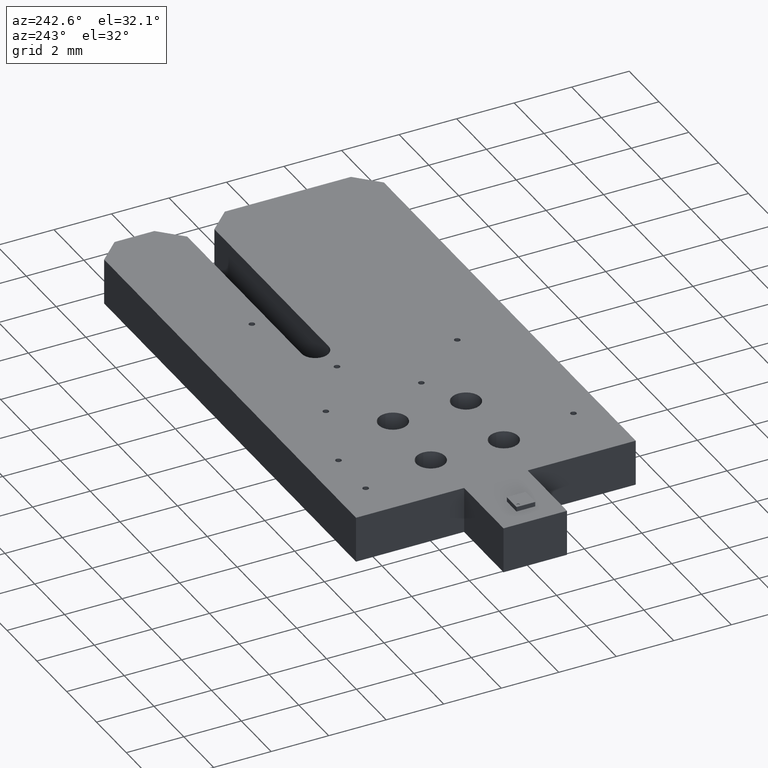
[diagram: clean part render]
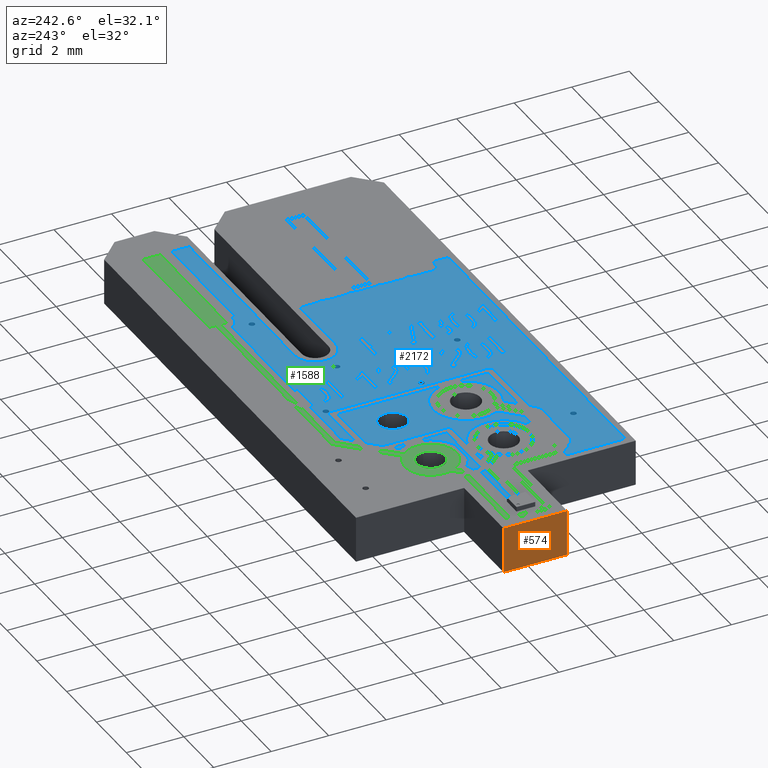
[diagram: same view with three faces highlighted in distinct colors, each labeled with its STEP entity id]
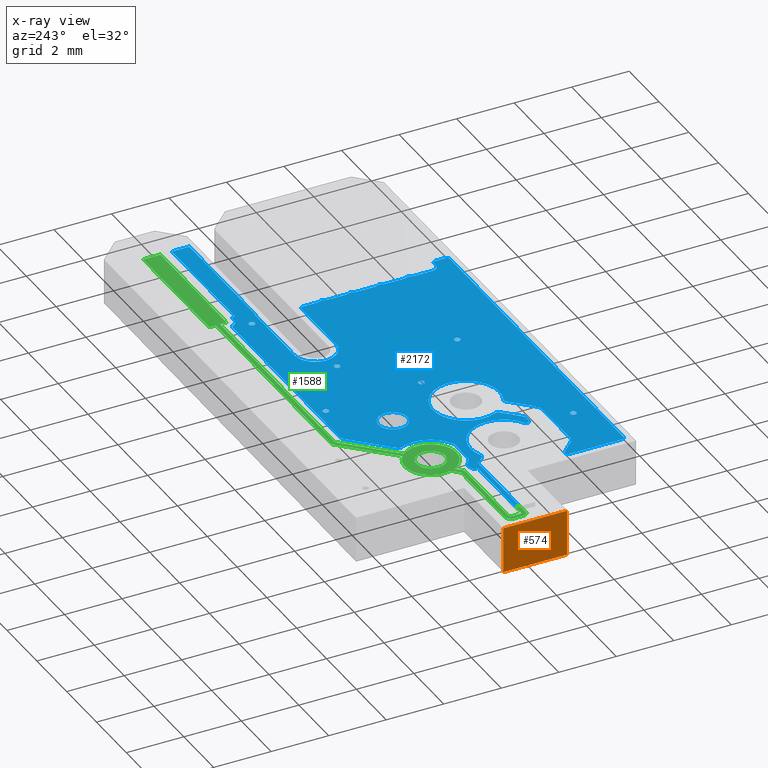
[diagram: x-ray of the same camera — body ghosted, the three highlighted faces saturated]
A machine part, auxiliary view with three faces highlighted in distinct colors.
The next image is the same camera in x-ray (body ghosted, the three faces saturated) — at least one of them is partly hidden behind the body in this view.
Their STEP definitions:

[orange] entity #574 — the highlighted planar face has unit normal (-1, 0, 0).
#549 = VERTEX_POINT('',#550);
#550 = CARTESIAN_POINT('',(1.435102870206,-1.104902209804,1.600025400051
    ));
#556 = EDGE_CURVE('',#557,#549,#559,.T.);
#557 = VERTEX_POINT('',#558);
#558 = CARTESIAN_POINT('',(1.435102870206,-1.104902209804,0.));
#559 = LINE('',#560,#561);
#560 = CARTESIAN_POINT('',(1.435102870206,-1.104902209804,0.));
#561 = VECTOR('',#562,1.);
#562 = DIRECTION('',(0.,0.,1.));
#574 = ADVANCED_FACE('',(#575),#600,.T.);
#575 = FACE_BOUND('',#576,.T.);
#576 = EDGE_LOOP('',(#577,#578,#586,#594));
#577 = ORIENTED_EDGE('',*,*,#556,.T.);
#578 = ORIENTED_EDGE('',*,*,#579,.T.);
#579 = EDGE_CURVE('',#549,#580,#582,.T.);
#580 = VERTEX_POINT('',#581);
#581 = CARTESIAN_POINT('',(1.435102870206,1.104902209804,1.600025400051)
  );
#582 = LINE('',#583,#584);
#583 = CARTESIAN_POINT('',(1.435102870206,-1.104902209804,1.600025400051
    ));
#584 = VECTOR('',#585,1.);
#585 = DIRECTION('',(0.,1.,0.));
#586 = ORIENTED_EDGE('',*,*,#587,.F.);
#587 = EDGE_CURVE('',#588,#580,#590,.T.);
#588 = VERTEX_POINT('',#589);
#589 = CARTESIAN_POINT('',(1.435102870206,1.104902209804,0.));
#590 = LINE('',#591,#592);
#591 = CARTESIAN_POINT('',(1.435102870206,1.104902209804,0.));
#592 = VECTOR('',#593,1.);
#593 = DIRECTION('',(0.,0.,1.));
#594 = ORIENTED_EDGE('',*,*,#595,.F.);
#595 = EDGE_CURVE('',#557,#588,#596,.T.);
#596 = LINE('',#597,#598);
#597 = CARTESIAN_POINT('',(1.435102870206,-1.104902209804,0.));
#598 = VECTOR('',#599,1.);
#599 = DIRECTION('',(0.,1.,0.));
#600 = PLANE('',#601);
#601 = AXIS2_PLACEMENT_3D('',#602,#603,#604);
#602 = CARTESIAN_POINT('',(1.435102870206,-1.104902209804,0.));
#603 = DIRECTION('',(-1.,0.,0.));
#604 = DIRECTION('',(0.,1.,0.));

[blue] entity #2172 — the highlighted planar face has unit normal (-0, -0, -1).
#2172 = ADVANCED_FACE('',(#2173,#2767,#2787,#2807,#2827,#2847,#2867,
    #2887),#2907,.T.);
#2173 = FACE_BOUND('',#2174,.T.);
#2174 = EDGE_LOOP('',(#2175,#2186,#2195,#2203,#2211,#2219,#2227,#2236,
    #2245,#2254,#2263,#2271,#2280,#2289,#2297,#2306,#2314,#2323,#2332,
    #2340,#2349,#2357,#2365,#2373,#2381,#2389,#2397,#2406,#2414,#2423,
    #2431,#2440,#2449,#2458,#2466,#2475,#2484,#2493,#2501,#2510,#2519,
    #2528,#2536,#2545,#2554,#2563,#2571,#2580,#2588,#2597,#2605,#2614,
    #2622,#2631,#2639,#2648,#2656,#2665,#2673,#2682,#2690,#2699,#2708,
    #2717,#2726,#2734,#2743,#2751,#2760));
#2175 = ORIENTED_EDGE('',*,*,#2176,.T.);
#2176 = EDGE_CURVE('',#2177,#2179,#2181,.T.);
#2177 = VERTEX_POINT('',#2178);
#2178 = CARTESIAN_POINT('',(7.021219520113,-0.737788060603,0.));
#2179 = VERTEX_POINT('',#2180);
#2180 = CARTESIAN_POINT('',(5.509216102142,-0.220159261251,0.));
#2181 = CIRCLE('',#2182,1.156540513081);
#2182 = AXIS2_PLACEMENT_3D('',#2183,#2184,#2185);
#2183 = CARTESIAN_POINT('',(5.994411988824,-1.270002540005,0.));
#2184 = DIRECTION('',(0.,0.,1.));
#2185 = DIRECTION('',(0.887826686291,0.460177981992,-0.));
#2186 = ORIENTED_EDGE('',*,*,#2187,.T.);
#2187 = EDGE_CURVE('',#2179,#2188,#2190,.T.);
#2188 = VERTEX_POINT('',#2189);
#2189 = CARTESIAN_POINT('',(5.394750239914,-0.199774429219,0.));
#2190 = CIRCLE('',#2191,0.1016002032);
#2191 = AXIS2_PLACEMENT_3D('',#2192,#2193,#2194);
#2192 = CARTESIAN_POINT('',(5.466592432567,-0.127932236566,0.));
#2193 = DIRECTION('',(-0.,0.,-1.));
#2194 = DIRECTION('',(0.419523467786,-0.907744490469,-0.));
#2195 = ORIENTED_EDGE('',*,*,#2196,.T.);
#2196 = EDGE_CURVE('',#2188,#2197,#2199,.T.);
#2197 = VERTEX_POINT('',#2198);
#2198 = CARTESIAN_POINT('',(5.131475683695,6.350012700025E-02,0.));
#2199 = LINE('',#2200,#2201);
#2200 = CARTESIAN_POINT('',(5.394750239914,-0.199774429219,0.));
#2201 = VECTOR('',#2202,1.);
#2202 = DIRECTION('',(-0.707106781187,0.707106781187,0.));
#2203 = ORIENTED_EDGE('',*,*,#2204,.T.);
#2204 = EDGE_CURVE('',#2197,#2205,#2207,.T.);
#2205 = VERTEX_POINT('',#2206);
#2206 = CARTESIAN_POINT('',(2.45110490221,6.350012700025E-02,0.));
#2207 = LINE('',#2208,#2209);
#2208 = CARTESIAN_POINT('',(5.131475683695,6.350012700025E-02,0.));
#2209 = VECTOR('',#2210,1.);
#2210 = DIRECTION('',(-1.,0.,0.));
#2211 = ORIENTED_EDGE('',*,*,#2212,.T.);
#2212 = EDGE_CURVE('',#2205,#2213,#2215,.T.);
#2213 = VERTEX_POINT('',#2214);
#2214 = CARTESIAN_POINT('',(2.45110490221,0.215900431801,0.));
#2215 = LINE('',#2216,#2217);
#2216 = CARTESIAN_POINT('',(2.45110490221,6.350012700025E-02,0.));
#2217 = VECTOR('',#2218,1.);
#2218 = DIRECTION('',(0.,1.,0.));
#2219 = ORIENTED_EDGE('',*,*,#2220,.T.);
#2220 = EDGE_CURVE('',#2213,#2221,#2223,.T.);
#2221 = VERTEX_POINT('',#2222);
#2222 = CARTESIAN_POINT('',(4.898025922359,0.215900431801,0.));
#2223 = LINE('',#2224,#2225);
#2224 = CARTESIAN_POINT('',(2.45110490221,0.215900431801,0.));
#2225 = VECTOR('',#2226,1.);
#2226 = DIRECTION('',(1.,0.,0.));
#2227 = ORIENTED_EDGE('',*,*,#2228,.T.);
#2228 = EDGE_CURVE('',#2221,#2229,#2231,.T.);
#2229 = VERTEX_POINT('',#2230);
#2230 = CARTESIAN_POINT('',(4.965529258874,0.3806217356,0.));
#2231 = CIRCLE('',#2232,0.1016002032);
#2232 = AXIS2_PLACEMENT_3D('',#2233,#2234,#2235);
#2233 = CARTESIAN_POINT('',(4.97711002946,0.279683699939,0.));
#2234 = DIRECTION('',(0.,0.,-1.));
#2235 = DIRECTION('',(-0.778385324142,-0.62778681665,-0.));
#2236 = ORIENTED_EDGE('',*,*,#2237,.T.);
#2237 = EDGE_CURVE('',#2229,#2238,#2240,.T.);
#2238 = VERTEX_POINT('',#2239);
#2239 = CARTESIAN_POINT('',(5.097576542779,0.425142958604,0.));
#2240 = CIRCLE('',#2241,0.332740665481);
#2241 = AXIS2_PLACEMENT_3D('',#2242,#2243,#2244);
#2242 = CARTESIAN_POINT('',(4.927602235204,0.711193802388,0.));
#2243 = DIRECTION('',(0.,0.,1.));
#2244 = DIRECTION('',(0.113983734494,-0.993482615988,0.));
#2245 = ORIENTED_EDGE('',*,*,#2246,.T.);
#2246 = EDGE_CURVE('',#2238,#2247,#2249,.T.);
#2247 = VERTEX_POINT('',#2248);
#2248 = CARTESIAN_POINT('',(5.217709173859,0.413078566934,0.));
#2249 = CIRCLE('',#2250,0.1016002032);
#2250 = AXIS2_PLACEMENT_3D('',#2251,#2252,#2253);
#2251 = CARTESIAN_POINT('',(5.149477094711,0.33779918951,0.));
#2252 = DIRECTION('',(0.,0.,-1.));
#2253 = DIRECTION('',(-0.510831182384,0.85968104731,0.));
#2254 = ORIENTED_EDGE('',*,*,#2255,.T.);
#2255 = EDGE_CURVE('',#2247,#2256,#2258,.T.);
#2256 = VERTEX_POINT('',#2257);
#2257 = CARTESIAN_POINT('',(5.518539417775,0.215900431801,0.));
#2258 = CIRCLE('',#2259,1.156540513081);
#2259 = AXIS2_PLACEMENT_3D('',#2260,#2261,#2262);
#2260 = CARTESIAN_POINT('',(5.994411988824,1.270002540005,0.));
#2261 = DIRECTION('',(0.,0.,1.));
#2262 = DIRECTION('',(-0.671574239017,-0.740937272303,0.));
#2263 = ORIENTED_EDGE('',*,*,#2264,.T.);
#2264 = EDGE_CURVE('',#2256,#2265,#2267,.T.);
#2265 = VERTEX_POINT('',#2266);
#2266 = CARTESIAN_POINT('',(6.470284559873,0.215900431801,0.));
#2267 = LINE('',#2268,#2269);
#2268 = CARTESIAN_POINT('',(5.518539417775,0.215900431801,0.));
#2269 = VECTOR('',#2270,1.);
#2270 = DIRECTION('',(1.,-8.748847056184E-17,0.));
#2271 = ORIENTED_EDGE('',*,*,#2272,.T.);
#2272 = EDGE_CURVE('',#2265,#2273,#2275,.T.);
#2273 = VERTEX_POINT('',#2274);
#2274 = CARTESIAN_POINT('',(7.044255267578,1.755198426687,0.));
#2275 = CIRCLE('',#2276,1.156540513081);
#2276 = AXIS2_PLACEMENT_3D('',#2277,#2278,#2279);
#2277 = CARTESIAN_POINT('',(5.994411988824,1.270002540005,0.));
#2278 = DIRECTION('',(0.,0.,1.));
#2279 = DIRECTION('',(0.41146208513,-0.91142687721,0.));
#2280 = ORIENTED_EDGE('',*,*,#2281,.T.);
#2281 = EDGE_CURVE('',#2273,#2282,#2284,.T.);
#2282 = VERTEX_POINT('',#2283);
#2283 = CARTESIAN_POINT('',(7.06464009961,1.869664288915,0.));
#2284 = CIRCLE('',#2285,0.1016002032);
#2285 = AXIS2_PLACEMENT_3D('',#2286,#2287,#2288);
#2286 = CARTESIAN_POINT('',(7.136482292263,1.797822096262,0.));
#2287 = DIRECTION('',(0.,0.,-1.));
#2288 = DIRECTION('',(-0.907744490469,-0.419523467786,-0.));
#2289 = ORIENTED_EDGE('',*,*,#2290,.T.);
#2290 = EDGE_CURVE('',#2282,#2291,#2293,.T.);
#2291 = VERTEX_POINT('',#2292);
#2292 = CARTESIAN_POINT('',(8.332604134921,3.137628324225,0.));
#2293 = LINE('',#2294,#2295);
#2294 = CARTESIAN_POINT('',(7.06464009961,1.869664288915,0.));
#2295 = VECTOR('',#2296,1.);
#2296 = DIRECTION('',(0.707106781187,0.707106781187,0.));
#2297 = ORIENTED_EDGE('',*,*,#2298,.T.);
#2298 = EDGE_CURVE('',#2291,#2299,#2301,.T.);
#2299 = VERTEX_POINT('',#2300);
#2300 = CARTESIAN_POINT('',(8.404446327574,3.167386334773,0.));
#2301 = CIRCLE('',#2302,0.1016002032);
#2302 = AXIS2_PLACEMENT_3D('',#2303,#2304,#2305);
#2303 = CARTESIAN_POINT('',(8.404446327574,3.065786131572,0.));
#2304 = DIRECTION('',(0.,0.,-1.));
#2305 = DIRECTION('',(-0.707106781187,0.707106781187,0.));
#2306 = ORIENTED_EDGE('',*,*,#2307,.T.);
#2307 = EDGE_CURVE('',#2299,#2308,#2310,.T.);
#2308 = VERTEX_POINT('',#2309);
#2309 = CARTESIAN_POINT('',(15.630039589024,3.167386334773,0.));
#2310 = LINE('',#2311,#2312);
#2311 = CARTESIAN_POINT('',(8.404446327574,3.167386334773,0.));
#2312 = VECTOR('',#2313,1.);
#2313 = DIRECTION('',(1.,0.,0.));
#2314 = ORIENTED_EDGE('',*,*,#2315,.T.);
#2315 = EDGE_CURVE('',#2308,#2316,#2318,.T.);
#2316 = VERTEX_POINT('',#2317);
#2317 = CARTESIAN_POINT('',(15.724760819901,3.10253514124,0.));
#2318 = CIRCLE('',#2319,0.1016002032);
#2319 = AXIS2_PLACEMENT_3D('',#2320,#2321,#2322);
#2320 = CARTESIAN_POINT('',(15.630039589024,3.065786131572,0.));
#2321 = DIRECTION('',(0.,0.,-1.));
#2322 = DIRECTION('',(-2.961863599601E-14,1.,0.));
#2323 = ORIENTED_EDGE('',*,*,#2324,.T.);
#2324 = EDGE_CURVE('',#2316,#2325,#2327,.T.);
#2325 = VERTEX_POINT('',#2326);
#2326 = CARTESIAN_POINT('',(15.963931927864,2.938785877572,0.));
#2327 = CIRCLE('',#2328,0.256540513081);
#2328 = AXIS2_PLACEMENT_3D('',#2329,#2330,#2331);
#2329 = CARTESIAN_POINT('',(15.963931927864,3.195326390653,0.));
#2330 = DIRECTION('',(0.,0.,1.));
#2331 = DIRECTION('',(-0.932293714902,-0.36170212766,0.));
#2332 = ORIENTED_EDGE('',*,*,#2333,.T.);
#2333 = EDGE_CURVE('',#2325,#2334,#2336,.T.);
#2334 = VERTEX_POINT('',#2335);
#2335 = CARTESIAN_POINT('',(16.078232156464,2.938785877572,0.));
#2336 = LINE('',#2337,#2338);
#2337 = CARTESIAN_POINT('',(15.963931927864,2.938785877572,0.));
#2338 = VECTOR('',#2339,1.);
#2339 = DIRECTION('',(1.,3.885287153733E-15,0.));
#2340 = ORIENTED_EDGE('',*,*,#2341,.T.);
#2341 = EDGE_CURVE('',#2334,#2342,#2344,.T.);
#2342 = VERTEX_POINT('',#2343);
#2343 = CARTESIAN_POINT('',(16.179832359665,2.837185674371,0.));
#2344 = CIRCLE('',#2345,0.1016002032);
#2345 = AXIS2_PLACEMENT_3D('',#2346,#2347,#2348);
#2346 = CARTESIAN_POINT('',(16.078232156464,2.837185674371,0.));
#2347 = DIRECTION('',(0.,0.,-1.));
#2348 = DIRECTION('',(6.567794885453E-15,1.,0.));
#2349 = ORIENTED_EDGE('',*,*,#2350,.T.);
#2350 = EDGE_CURVE('',#2342,#2351,#2353,.T.);
#2351 = VERTEX_POINT('',#2352);
#2352 = CARTESIAN_POINT('',(16.179832359665,2.804165608331,0.));
#2353 = LINE('',#2354,#2355);
#2354 = CARTESIAN_POINT('',(16.179832359665,2.837185674371,0.));
#2355 = VECTOR('',#2356,1.);
#2356 = DIRECTION('',(1.075925673341E-13,-1.,0.));
#2357 = ORIENTED_EDGE('',*,*,#2358,.T.);
#2358 = EDGE_CURVE('',#2351,#2359,#2361,.T.);
#2359 = VERTEX_POINT('',#2360);
#2360 = CARTESIAN_POINT('',(20.408940817882,2.804165608331,0.));
#2361 = LINE('',#2362,#2363);
#2362 = CARTESIAN_POINT('',(16.179832359665,2.804165608331,0.));
#2363 = VECTOR('',#2364,1.);
#2364 = DIRECTION('',(1.,-1.050077609117E-16,0.));
#2365 = ORIENTED_EDGE('',*,*,#2366,.T.);
#2366 = EDGE_CURVE('',#2359,#2367,#2369,.T.);
#2367 = VERTEX_POINT('',#2368);
#2368 = CARTESIAN_POINT('',(20.408940817882,2.194564389129,0.));
#2369 = LINE('',#2370,#2371);
#2370 = CARTESIAN_POINT('',(20.408940817882,2.804165608331,0.));
#2371 = VECTOR('',#2372,1.);
#2372 = DIRECTION('',(0.,-1.,0.));
#2373 = ORIENTED_EDGE('',*,*,#2374,.T.);
#2374 = EDGE_CURVE('',#2367,#2375,#2377,.T.);
#2375 = VERTEX_POINT('',#2376);
#2376 = CARTESIAN_POINT('',(15.963931927864,2.194564389129,0.));
#2377 = LINE('',#2378,#2379);
#2378 = CARTESIAN_POINT('',(20.408940817882,2.194564389129,0.));
#2379 = VECTOR('',#2380,1.);
#2380 = DIRECTION('',(-1.,9.990738395313E-17,0.));
#2381 = ORIENTED_EDGE('',*,*,#2382,.T.);
#2382 = EDGE_CURVE('',#2375,#2383,#2385,.T.);
#2383 = VERTEX_POINT('',#2384);
#2384 = CARTESIAN_POINT('',(15.963931927864,2.214884429769,0.));
#2385 = LINE('',#2386,#2387);
#2386 = CARTESIAN_POINT('',(15.963931927864,2.194564389129,0.));
#2387 = VECTOR('',#2388,1.);
#2388 = DIRECTION('',(0.,1.,0.));
#2389 = ORIENTED_EDGE('',*,*,#2390,.T.);
#2390 = EDGE_CURVE('',#2383,#2391,#2393,.T.);
#2391 = VERTEX_POINT('',#2392);
#2392 = CARTESIAN_POINT('',(13.309626619253,2.214884429769,0.));
#2393 = LINE('',#2394,#2395);
#2394 = CARTESIAN_POINT('',(15.963931927864,2.214884429769,0.));
#2395 = VECTOR('',#2396,1.);
#2396 = DIRECTION('',(-1.,0.,0.));
#2397 = ORIENTED_EDGE('',*,*,#2398,.T.);
#2398 = EDGE_CURVE('',#2391,#2399,#2401,.T.);
#2399 = VERTEX_POINT('',#2400);
#2400 = CARTESIAN_POINT('',(13.309626619253,0.787401574803,0.));
#2401 = CIRCLE('',#2402,0.713741427483);
#2402 = AXIS2_PLACEMENT_3D('',#2403,#2404,#2405);
#2403 = CARTESIAN_POINT('',(13.309626619253,1.501143002286,0.));
#2404 = DIRECTION('',(0.,0.,1.));
#2405 = DIRECTION('',(-1.110223024625E-16,1.,0.));
#2406 = ORIENTED_EDGE('',*,*,#2407,.T.);
#2407 = EDGE_CURVE('',#2399,#2408,#2410,.T.);
#2408 = VERTEX_POINT('',#2409);
#2409 = CARTESIAN_POINT('',(15.605791211582,0.787401574803,0.));
#2410 = LINE('',#2411,#2412);
#2411 = CARTESIAN_POINT('',(13.309626619253,0.787401574803,0.));
#2412 = VECTOR('',#2413,1.);
#2413 = DIRECTION('',(1.,0.,0.));
#2414 = ORIENTED_EDGE('',*,*,#2415,.T.);
#2415 = EDGE_CURVE('',#2408,#2416,#2418,.T.);
#2416 = VERTEX_POINT('',#2417);
#2417 = CARTESIAN_POINT('',(15.707391414783,0.685801371603,0.));
#2418 = CIRCLE('',#2419,0.1016002032);
#2419 = AXIS2_PLACEMENT_3D('',#2420,#2421,#2422);
#2420 = CARTESIAN_POINT('',(15.605791211582,0.685801371603,0.));
#2421 = DIRECTION('',(0.,0.,-1.));
#2422 = DIRECTION('',(-3.187312223823E-15,1.,0.));
#2423 = ORIENTED_EDGE('',*,*,#2424,.T.);
#2424 = EDGE_CURVE('',#2416,#2425,#2427,.T.);
#2425 = VERTEX_POINT('',#2426);
#2426 = CARTESIAN_POINT('',(15.707391414783,0.195580391161,0.));
#2427 = LINE('',#2428,#2429);
#2428 = CARTESIAN_POINT('',(15.707391414783,0.685801371603,0.));
#2429 = VECTOR('',#2430,1.);
#2430 = DIRECTION('',(3.623583873948E-15,-1.,0.));
#2431 = ORIENTED_EDGE('',*,*,#2432,.T.);
#2432 = EDGE_CURVE('',#2425,#2433,#2435,.T.);
#2433 = VERTEX_POINT('',#2434);
#2434 = CARTESIAN_POINT('',(15.749022691925,5.548379891086E-02,0.));
#2435 = CIRCLE('',#2436,0.256540513081);
#2436 = AXIS2_PLACEMENT_3D('',#2437,#2438,#2439);
#2437 = CARTESIAN_POINT('',(15.963931927864,0.195580391161,0.));
#2438 = DIRECTION('',(0.,0.,1.));
#2439 = DIRECTION('',(-1.,4.367925577747E-15,0.));
#2440 = ORIENTED_EDGE('',*,*,#2441,.T.);
#2441 = EDGE_CURVE('',#2433,#2442,#2444,.T.);
#2442 = VERTEX_POINT('',#2443);
#2443 = CARTESIAN_POINT('',(15.749022691925,-5.548379891086E-02,0.));
#2444 = CIRCLE('',#2445,0.1016002032);
#2445 = AXIS2_PLACEMENT_3D('',#2446,#2447,#2448);
#2446 = CARTESIAN_POINT('',(15.663910123236,-4.78273572157E-16,0.));
#2447 = DIRECTION('',(0.,0.,-1.));
#2448 = DIRECTION('',(0.837720457318,0.54609929078,0.));
#2449 = ORIENTED_EDGE('',*,*,#2450,.T.);
#2450 = EDGE_CURVE('',#2442,#2451,#2453,.T.);
#2451 = VERTEX_POINT('',#2452);
#2452 = CARTESIAN_POINT('',(15.707391414783,-0.195580391161,0.));
#2453 = CIRCLE('',#2454,0.256540513081);
#2454 = AXIS2_PLACEMENT_3D('',#2455,#2456,#2457);
#2455 = CARTESIAN_POINT('',(15.963931927864,-0.195580391161,0.));
#2456 = DIRECTION('',(0.,0.,1.));
#2457 = DIRECTION('',(-0.837720457318,0.54609929078,0.));
#2458 = ORIENTED_EDGE('',*,*,#2459,.T.);
#2459 = EDGE_CURVE('',#2451,#2460,#2462,.T.);
#2460 = VERTEX_POINT('',#2461);
#2461 = CARTESIAN_POINT('',(15.707391414783,-0.805181610363,0.));
#2462 = LINE('',#2463,#2464);
#2463 = CARTESIAN_POINT('',(15.707391414783,-0.195580391161,0.));
#2464 = VECTOR('',#2465,1.);
#2465 = DIRECTION('',(-2.913965365299E-15,-1.,0.));
#2466 = ORIENTED_EDGE('',*,*,#2467,.T.);
#2467 = EDGE_CURVE('',#2460,#2468,#2470,.T.);
#2468 = VERTEX_POINT('',#2469);
#2469 = CARTESIAN_POINT('',(15.749022691925,-0.945278202613,0.));
#2470 = CIRCLE('',#2471,0.256540513081);
#2471 = AXIS2_PLACEMENT_3D('',#2472,#2473,#2474);
#2472 = CARTESIAN_POINT('',(15.963931927864,-0.805181610363,0.));
#2473 = DIRECTION('',(0.,0.,1.));
#2474 = DIRECTION('',(-1.,9.875310001862E-15,0.));
#2475 = ORIENTED_EDGE('',*,*,#2476,.T.);
#2476 = EDGE_CURVE('',#2468,#2477,#2479,.T.);
#2477 = VERTEX_POINT('',#2478);
#2478 = CARTESIAN_POINT('',(15.749022691925,-1.056245800435,0.));
#2479 = CIRCLE('',#2480,0.1016002032);
#2480 = AXIS2_PLACEMENT_3D('',#2481,#2482,#2483);
#2481 = CARTESIAN_POINT('',(15.663910123236,-1.000762001524,0.));
#2482 = DIRECTION('',(0.,0.,-1.));
#2483 = DIRECTION('',(0.837720457318,0.54609929078,0.));
#2484 = ORIENTED_EDGE('',*,*,#2485,.T.);
#2485 = EDGE_CURVE('',#2477,#2486,#2488,.T.);
#2486 = VERTEX_POINT('',#2487);
#2487 = CARTESIAN_POINT('',(15.707391414783,-1.196342392685,0.));
#2488 = CIRCLE('',#2489,0.256540513081);
#2489 = AXIS2_PLACEMENT_3D('',#2490,#2491,#2492);
#2490 = CARTESIAN_POINT('',(15.963931927864,-1.196342392685,0.));
#2491 = DIRECTION('',(0.,0.,1.));
#2492 = DIRECTION('',(-0.837720457318,0.54609929078,0.));
#2493 = ORIENTED_EDGE('',*,*,#2494,.T.);
#2494 = EDGE_CURVE('',#2486,#2495,#2497,.T.);
#2495 = VERTEX_POINT('',#2496);
#2496 = CARTESIAN_POINT('',(15.707391414783,-1.805943611887,0.));
#2497 = LINE('',#2498,#2499);
#2498 = CARTESIAN_POINT('',(15.707391414783,-1.196342392685,0.));
#2499 = VECTOR('',#2500,1.);
#2500 = DIRECTION('',(0.,-1.,0.));
#2501 = ORIENTED_EDGE('',*,*,#2502,.T.);
#2502 = EDGE_CURVE('',#2495,#2503,#2505,.T.);
#2503 = VERTEX_POINT('',#2504);
#2504 = CARTESIAN_POINT('',(15.749022691925,-1.946040204137,0.));
#2505 = CIRCLE('',#2506,0.256540513081);
#2506 = AXIS2_PLACEMENT_3D('',#2507,#2508,#2509);
#2507 = CARTESIAN_POINT('',(15.963931927864,-1.805943611887,0.));
#2508 = DIRECTION('',(0.,0.,1.));
#2509 = DIRECTION('',(-1.,3.608286346834E-15,0.));
#2510 = ORIENTED_EDGE('',*,*,#2511,.T.);
#2511 = EDGE_CURVE('',#2503,#2512,#2514,.T.);
#2512 = VERTEX_POINT('',#2513);
#2513 = CARTESIAN_POINT('',(15.749022691925,-2.057007801959,0.));
#2514 = CIRCLE('',#2515,0.1016002032);
#2515 = AXIS2_PLACEMENT_3D('',#2516,#2517,#2518);
#2516 = CARTESIAN_POINT('',(15.663910123236,-2.001524003048,0.));
#2517 = DIRECTION('',(0.,0.,-1.));
#2518 = DIRECTION('',(0.837720457318,0.54609929078,0.));
#2519 = ORIENTED_EDGE('',*,*,#2520,.T.);
#2520 = EDGE_CURVE('',#2512,#2521,#2523,.T.);
#2521 = VERTEX_POINT('',#2522);
#2522 = CARTESIAN_POINT('',(15.707391414783,-2.197104394209,0.));
#2523 = CIRCLE('',#2524,0.256540513081);
#2524 = AXIS2_PLACEMENT_3D('',#2525,#2526,#2527);
#2525 = CARTESIAN_POINT('',(15.963931927864,-2.197104394209,0.));
#2526 = DIRECTION('',(0.,0.,1.));
#2527 = DIRECTION('',(-0.837720457318,0.54609929078,0.));
#2528 = ORIENTED_EDGE('',*,*,#2529,.T.);
#2529 = EDGE_CURVE('',#2521,#2530,#2532,.T.);
#2530 = VERTEX_POINT('',#2531);
#2531 = CARTESIAN_POINT('',(15.707391414783,-2.806705613411,0.));
#2532 = LINE('',#2533,#2534);
#2533 = CARTESIAN_POINT('',(15.707391414783,-2.197104394209,0.));
#2534 = VECTOR('',#2535,1.);
#2535 = DIRECTION('',(-2.913965365299E-15,-1.,0.));
#2536 = ORIENTED_EDGE('',*,*,#2537,.T.);
#2537 = EDGE_CURVE('',#2530,#2538,#2540,.T.);
#2538 = VERTEX_POINT('',#2539);
#2539 = CARTESIAN_POINT('',(15.749022691925,-2.946802205661,0.));
#2540 = CIRCLE('',#2541,0.256540513081);
#2541 = AXIS2_PLACEMENT_3D('',#2542,#2543,#2544);
#2542 = CARTESIAN_POINT('',(15.963931927864,-2.806705613411,0.));
#2543 = DIRECTION('',(0.,0.,1.));
#2544 = DIRECTION('',(-1.,6.124591299232E-15,0.));
#2545 = ORIENTED_EDGE('',*,*,#2546,.T.);
#2546 = EDGE_CURVE('',#2538,#2547,#2549,.T.);
#2547 = VERTEX_POINT('',#2548);
#2548 = CARTESIAN_POINT('',(15.749022691925,-3.057769803483,0.));
#2549 = CIRCLE('',#2550,0.1016002032);
#2550 = AXIS2_PLACEMENT_3D('',#2551,#2552,#2553);
#2551 = CARTESIAN_POINT('',(15.663910123236,-3.002286004572,0.));
#2552 = DIRECTION('',(0.,0.,-1.));
#2553 = DIRECTION('',(0.837720457318,0.54609929078,0.));
#2554 = ORIENTED_EDGE('',*,*,#2555,.T.);
#2555 = EDGE_CURVE('',#2547,#2556,#2558,.T.);
#2556 = VERTEX_POINT('',#2557);
#2557 = CARTESIAN_POINT('',(15.707391414783,-3.197866395733,0.));
#2558 = CIRCLE('',#2559,0.256540513081);
#2559 = AXIS2_PLACEMENT_3D('',#2560,#2561,#2562);
#2560 = CARTESIAN_POINT('',(15.963931927864,-3.197866395733,0.));
#2561 = DIRECTION('',(0.,0.,1.));
#2562 = DIRECTION('',(-0.837720457318,0.54609929078,0.));
#2563 = ORIENTED_EDGE('',*,*,#2564,.T.);
#2564 = EDGE_CURVE('',#2556,#2565,#2567,.T.);
#2565 = VERTEX_POINT('',#2566);
#2566 = CARTESIAN_POINT('',(15.707391414783,-3.807467614935,0.));
#2567 = LINE('',#2568,#2569);
#2568 = CARTESIAN_POINT('',(15.707391414783,-3.197866395733,0.));
#2569 = VECTOR('',#2570,1.);
#2570 = DIRECTION('',(2.913965365299E-15,-1.,0.));
#2571 = ORIENTED_EDGE('',*,*,#2572,.T.);
#2572 = EDGE_CURVE('',#2565,#2573,#2575,.T.);
#2573 = VERTEX_POINT('',#2574);
#2574 = CARTESIAN_POINT('',(15.963931927864,-4.064008128016,0.));
#2575 = CIRCLE('',#2576,0.256540513081);
#2576 = AXIS2_PLACEMENT_3D('',#2577,#2578,#2579);
#2577 = CARTESIAN_POINT('',(15.963931927864,-3.807467614935,0.));
#2578 = DIRECTION('',(0.,0.,1.));
#2579 = DIRECTION('',(-1.,1.683069161095E-15,0.));
#2580 = ORIENTED_EDGE('',*,*,#2581,.T.);
#2581 = EDGE_CURVE('',#2573,#2582,#2584,.T.);
#2582 = VERTEX_POINT('',#2583);
#2583 = CARTESIAN_POINT('',(16.078232156464,-4.064008128016,0.));
#2584 = LINE('',#2585,#2586);
#2585 = CARTESIAN_POINT('',(15.963931927864,-4.064008128016,0.));
#2586 = VECTOR('',#2587,1.);
#2587 = DIRECTION('',(1.,0.,0.));
#2588 = ORIENTED_EDGE('',*,*,#2589,.T.);
#2589 = EDGE_CURVE('',#2582,#2590,#2592,.T.);
#2590 = VERTEX_POINT('',#2591);
#2591 = CARTESIAN_POINT('',(16.179832359665,-4.165608331217,0.));
#2592 = CIRCLE('',#2593,0.1016002032);
#2593 = AXIS2_PLACEMENT_3D('',#2594,#2595,#2596);
#2594 = CARTESIAN_POINT('',(16.078232156464,-4.165608331217,0.));
#2595 = DIRECTION('',(0.,0.,-1.));
#2596 = DIRECTION('',(4.442920069571E-15,1.,0.));
#2597 = ORIENTED_EDGE('',*,*,#2598,.T.);
#2598 = EDGE_CURVE('',#2590,#2599,#2601,.T.);
#2599 = VERTEX_POINT('',#2600);
#2600 = CARTESIAN_POINT('',(16.179832359665,-4.518669037338,0.));
#2601 = LINE('',#2602,#2603);
#2602 = CARTESIAN_POINT('',(16.179832359665,-4.165608331217,0.));
#2603 = VECTOR('',#2604,1.);
#2604 = DIRECTION('',(1.006261421111E-14,-1.,0.));
#2605 = ORIENTED_EDGE('',*,*,#2606,.T.);
#2606 = EDGE_CURVE('',#2599,#2607,#2609,.T.);
#2607 = VERTEX_POINT('',#2608);
#2608 = CARTESIAN_POINT('',(16.078232156464,-4.620269240538,0.));
#2609 = CIRCLE('',#2610,0.1016002032);
#2610 = AXIS2_PLACEMENT_3D('',#2611,#2612,#2613);
#2611 = CARTESIAN_POINT('',(16.078232156464,-4.518669037338,0.));
#2612 = DIRECTION('',(0.,0.,-1.));
#2613 = DIRECTION('',(1.,-1.313558977091E-14,0.));
#2614 = ORIENTED_EDGE('',*,*,#2615,.T.);
#2615 = EDGE_CURVE('',#2607,#2616,#2618,.T.);
#2616 = VERTEX_POINT('',#2617);
#2617 = CARTESIAN_POINT('',(4.422148844298,-4.620269240538,0.));
#2618 = LINE('',#2619,#2620);
#2619 = CARTESIAN_POINT('',(16.078232156464,-4.620269240538,0.));
#2620 = VECTOR('',#2621,1.);
#2621 = DIRECTION('',(-1.,0.,0.));
#2622 = ORIENTED_EDGE('',*,*,#2623,.T.);
#2623 = EDGE_CURVE('',#2616,#2624,#2626,.T.);
#2624 = VERTEX_POINT('',#2625);
#2625 = CARTESIAN_POINT('',(4.320548641097,-4.518669037338,0.));
#2626 = CIRCLE('',#2627,0.1016002032);
#2627 = AXIS2_PLACEMENT_3D('',#2628,#2629,#2630);
#2628 = CARTESIAN_POINT('',(4.422148844298,-4.518669037338,0.));
#2629 = DIRECTION('',(0.,0.,-1.));
#2630 = DIRECTION('',(-9.658521890372E-17,-1.,-0.));
#2631 = ORIENTED_EDGE('',*,*,#2632,.T.);
#2632 = EDGE_CURVE('',#2624,#2633,#2635,.T.);
#2633 = VERTEX_POINT('',#2634);
#2634 = CARTESIAN_POINT('',(4.320548641097,-2.674194867071,0.));
#2635 = LINE('',#2636,#2637);
#2636 = CARTESIAN_POINT('',(4.320548641097,-4.518669037338,0.));
#2637 = VECTOR('',#2638,1.);
#2638 = DIRECTION('',(0.,1.,0.));
#2639 = ORIENTED_EDGE('',*,*,#2640,.T.);
#2640 = EDGE_CURVE('',#2633,#2641,#2643,.T.);
#2641 = VERTEX_POINT('',#2642);
#2642 = CARTESIAN_POINT('',(4.493991036951,-2.602352674418,0.));
#2643 = CIRCLE('',#2644,0.1016002032);
#2644 = AXIS2_PLACEMENT_3D('',#2645,#2646,#2647);
#2645 = CARTESIAN_POINT('',(4.422148844298,-2.674194867071,0.));
#2646 = DIRECTION('',(0.,0.,-1.));
#2647 = DIRECTION('',(-1.,-1.626308775776E-15,-0.));
#2648 = ORIENTED_EDGE('',*,*,#2649,.T.);
#2649 = EDGE_CURVE('',#2641,#2650,#2652,.T.);
#2650 = VERTEX_POINT('',#2651);
#2651 = CARTESIAN_POINT('',(4.920927131482,-3.02928876895,0.));
#2652 = LINE('',#2653,#2654);
#2653 = CARTESIAN_POINT('',(4.493991036951,-2.602352674418,0.));
#2654 = VECTOR('',#2655,1.);
#2655 = DIRECTION('',(0.707106781187,-0.707106781187,0.));
#2656 = ORIENTED_EDGE('',*,*,#2657,.T.);
#2657 = EDGE_CURVE('',#2650,#2658,#2660,.T.);
#2658 = VERTEX_POINT('',#2659);
#2659 = CARTESIAN_POINT('',(5.156210312421,-3.126746253493,0.));
#2660 = CIRCLE('',#2661,0.332740665481);
#2661 = AXIS2_PLACEMENT_3D('',#2662,#2663,#2664);
#2662 = CARTESIAN_POINT('',(5.156210312421,-2.794005588011,0.));
#2663 = DIRECTION('',(0.,0.,1.));
#2664 = DIRECTION('',(-0.707106781187,-0.707106781187,0.));
#2665 = ORIENTED_EDGE('',*,*,#2666,.T.);
#2666 = EDGE_CURVE('',#2658,#2667,#2669,.T.);
#2667 = VERTEX_POINT('',#2668);
#2668 = CARTESIAN_POINT('',(7.010414020828,-3.126746253493,0.));
#2669 = LINE('',#2670,#2671);
#2670 = CARTESIAN_POINT('',(5.156210312421,-3.126746253493,0.));
#2671 = VECTOR('',#2672,1.);
#2672 = DIRECTION('',(1.,0.,0.));
#2673 = ORIENTED_EDGE('',*,*,#2674,.T.);
#2674 = EDGE_CURVE('',#2667,#2675,#2677,.T.);
#2675 = VERTEX_POINT('',#2676);
#2676 = CARTESIAN_POINT('',(7.245697201766,-3.02928876895,0.));
#2677 = CIRCLE('',#2678,0.332740665481);
#2678 = AXIS2_PLACEMENT_3D('',#2679,#2680,#2681);
#2679 = CARTESIAN_POINT('',(7.010414020828,-2.794005588011,0.));
#2680 = DIRECTION('',(0.,0.,1.));
#2681 = DIRECTION('',(-1.035376507406E-15,-1.,0.));
#2682 = ORIENTED_EDGE('',*,*,#2683,.T.);
#2683 = EDGE_CURVE('',#2675,#2684,#2686,.T.);
#2684 = VERTEX_POINT('',#2685);
#2685 = CARTESIAN_POINT('',(7.934755319924,-2.340230650792,0.));
#2686 = LINE('',#2687,#2688);
#2687 = CARTESIAN_POINT('',(7.245697201766,-3.02928876895,0.));
#2688 = VECTOR('',#2689,1.);
#2689 = DIRECTION('',(0.707106781187,0.707106781187,0.));
#2690 = ORIENTED_EDGE('',*,*,#2691,.T.);
#2691 = EDGE_CURVE('',#2684,#2692,#2694,.T.);
#2692 = VERTEX_POINT('',#2693);
#2693 = CARTESIAN_POINT('',(8.049221182152,-2.319845818759,0.));
#2694 = CIRCLE('',#2695,0.1016002032);
#2695 = AXIS2_PLACEMENT_3D('',#2696,#2697,#2698);
#2696 = CARTESIAN_POINT('',(8.006597512577,-2.412072843444,0.));
#2697 = DIRECTION('',(0.,0.,-1.));
#2698 = DIRECTION('',(-0.707106781187,0.707106781187,0.));
#2699 = ORIENTED_EDGE('',*,*,#2700,.T.);
#2700 = EDGE_CURVE('',#2692,#2701,#2703,.T.);
#2701 = VERTEX_POINT('',#2702);
#2702 = CARTESIAN_POINT('',(9.352214708351,-0.452204900489,0.));
#2703 = CIRCLE('',#2704,1.156540513081);
#2704 = AXIS2_PLACEMENT_3D('',#2705,#2706,#2707);
#2705 = CARTESIAN_POINT('',(8.534417068834,-1.270002540005,0.));
#2706 = DIRECTION('',(0.,0.,1.));
#2707 = DIRECTION('',(-0.419523467786,-0.907744490469,0.));
#2708 = ORIENTED_EDGE('',*,*,#2709,.T.);
#2709 = EDGE_CURVE('',#2701,#2710,#2712,.T.);
#2710 = VERTEX_POINT('',#2711);
#2711 = CARTESIAN_POINT('',(7.48457379008,-1.755198426687,0.));
#2712 = CIRCLE('',#2713,1.156540513081);
#2713 = AXIS2_PLACEMENT_3D('',#2714,#2715,#2716);
#2714 = CARTESIAN_POINT('',(8.534417068834,-1.270002540005,0.));
#2715 = DIRECTION('',(0.,0.,1.));
#2716 = DIRECTION('',(0.707106781187,0.707106781187,-0.));
#2717 = ORIENTED_EDGE('',*,*,#2718,.T.);
#2718 = EDGE_CURVE('',#2710,#2719,#2721,.T.);
#2719 = VERTEX_POINT('',#2720);
#2720 = CARTESIAN_POINT('',(7.464188958048,-1.869664288915,0.));
#2721 = CIRCLE('',#2722,0.1016002032);
#2722 = AXIS2_PLACEMENT_3D('',#2723,#2724,#2725);
#2723 = CARTESIAN_POINT('',(7.392346765395,-1.797822096262,0.));
#2724 = DIRECTION('',(0.,0.,-1.));
#2725 = DIRECTION('',(0.907744490469,0.419523467786,0.));
#2726 = ORIENTED_EDGE('',*,*,#2727,.T.);
#2727 = EDGE_CURVE('',#2719,#2728,#2730,.T.);
#2728 = VERTEX_POINT('',#2729);
#2729 = CARTESIAN_POINT('',(6.90234633498,-2.431506911982,0.));
#2730 = LINE('',#2731,#2732);
#2731 = CARTESIAN_POINT('',(7.464188958048,-1.869664288915,0.));
#2732 = VECTOR('',#2733,1.);
#2733 = DIRECTION('',(-0.707106781187,-0.707106781187,0.));
#2734 = ORIENTED_EDGE('',*,*,#2735,.T.);
#2735 = EDGE_CURVE('',#2728,#2736,#2738,.T.);
#2736 = VERTEX_POINT('',#2737);
#2737 = CARTESIAN_POINT('',(6.830504142327,-2.46126492253,0.));
#2738 = CIRCLE('',#2739,0.1016002032);
#2739 = AXIS2_PLACEMENT_3D('',#2740,#2741,#2742);
#2740 = CARTESIAN_POINT('',(6.830504142327,-2.359664719329,0.));
#2741 = DIRECTION('',(0.,0.,-1.));
#2742 = DIRECTION('',(0.707106781187,-0.707106781187,0.));
#2743 = ORIENTED_EDGE('',*,*,#2744,.T.);
#2744 = EDGE_CURVE('',#2736,#2745,#2747,.T.);
#2745 = VERTEX_POINT('',#2746);
#2746 = CARTESIAN_POINT('',(6.623343143177,-2.46126492253,0.));
#2747 = LINE('',#2748,#2749);
#2748 = CARTESIAN_POINT('',(6.830504142327,-2.46126492253,0.));
#2749 = VECTOR('',#2750,1.);
#2750 = DIRECTION('',(-1.,0.,0.));
#2751 = ORIENTED_EDGE('',*,*,#2752,.T.);
#2752 = EDGE_CURVE('',#2745,#2753,#2755,.T.);
#2753 = VERTEX_POINT('',#2754);
#2754 = CARTESIAN_POINT('',(6.572554282873,-2.27166987312,0.));
#2755 = CIRCLE('',#2756,0.1016002032);
#2756 = AXIS2_PLACEMENT_3D('',#2757,#2758,#2759);
#2757 = CARTESIAN_POINT('',(6.623343143177,-2.359664719329,0.));
#2758 = DIRECTION('',(0.,0.,-1.));
#2759 = DIRECTION('',(-1.873658053322E-15,-1.,-0.));
#2760 = ORIENTED_EDGE('',*,*,#2761,.T.);
#2761 = EDGE_CURVE('',#2753,#2177,#2762,.T.);
#2762 = CIRCLE('',#2763,1.156540513081);
#2763 = AXIS2_PLACEMENT_3D('',#2764,#2765,#2766);
#2764 = CARTESIAN_POINT('',(5.994411988824,-1.270002540005,0.));
#2765 = DIRECTION('',(0.,0.,1.));
#2766 = DIRECTION('',(0.499889357537,-0.866089273817,0.));
#2767 = FACE_BOUND('',#2768,.T.);
#2768 = EDGE_LOOP('',(#2769,#2780));
#2769 = ORIENTED_EDGE('',*,*,#2770,.T.);
#2770 = EDGE_CURVE('',#2771,#2773,#2775,.T.);
#2771 = VERTEX_POINT('',#2772);
#2772 = CARTESIAN_POINT('',(11.709423418847,-2.667005334011,0.));
#2773 = VERTEX_POINT('',#2774);
#2774 = CARTESIAN_POINT('',(11.912623825248,-2.667005334011,0.));
#2775 = CIRCLE('',#2776,0.1016002032);
#2776 = AXIS2_PLACEMENT_3D('',#2777,#2778,#2779);
#2777 = CARTESIAN_POINT('',(11.811023622047,-2.667005334011,0.));
#2778 = DIRECTION('',(0.,0.,1.));
#2779 = DIRECTION('',(-1.,-1.110223024625E-16,0.));
#2780 = ORIENTED_EDGE('',*,*,#2781,.T.);
#2781 = EDGE_CURVE('',#2773,#2771,#2782,.T.);
#2782 = CIRCLE('',#2783,0.1016002032);
#2783 = AXIS2_PLACEMENT_3D('',#2784,#2785,#2786);
#2784 = CARTESIAN_POINT('',(11.811023622047,-2.667005334011,0.));
#2785 = DIRECTION('',(0.,0.,1.));
#2786 = DIRECTION('',(1.,1.110223024625E-16,-0.));
#2787 = FACE_BOUND('',#2788,.T.);
#2788 = EDGE_LOOP('',(#2789,#2800));
#2789 = ORIENTED_EDGE('',*,*,#2790,.T.);
#2790 = EDGE_CURVE('',#2791,#2793,#2795,.T.);
#2791 = VERTEX_POINT('',#2792);
#2792 = CARTESIAN_POINT('',(6.273812547625,-3.886207772416,0.));
#2793 = VERTEX_POINT('',#2794);
#2794 = CARTESIAN_POINT('',(6.477012954026,-3.886207772416,0.));
#2795 = CIRCLE('',#2796,0.1016002032);
#2796 = AXIS2_PLACEMENT_3D('',#2797,#2798,#2799);
#2797 = CARTESIAN_POINT('',(6.375412750826,-3.886207772416,0.));
#2798 = DIRECTION('',(0.,0.,1.));
#2799 = DIRECTION('',(-1.,-1.110223024625E-16,0.));
#2800 = ORIENTED_EDGE('',*,*,#2801,.T.);
#2801 = EDGE_CURVE('',#2793,#2791,#2802,.T.);
#2802 = CIRCLE('',#2803,0.1016002032);
#2803 = AXIS2_PLACEMENT_3D('',#2804,#2805,#2806);
#2804 = CARTESIAN_POINT('',(6.375412750826,-3.886207772416,0.));
#2805 = DIRECTION('',(0.,0.,1.));
#2806 = DIRECTION('',(1.,1.110223024625E-16,-0.));
#2807 = FACE_BOUND('',#2808,.T.);
#2808 = EDGE_LOOP('',(#2809,#2820));
#2809 = ORIENTED_EDGE('',*,*,#2810,.T.);
#2810 = EDGE_CURVE('',#2811,#2813,#2815,.T.);
#2811 = VERTEX_POINT('',#2812);
#2812 = CARTESIAN_POINT('',(10.00762001524,-0.533401066802,0.));
#2813 = VERTEX_POINT('',#2814);
#2814 = CARTESIAN_POINT('',(10.210820421641,-0.533401066802,0.));
#2815 = CIRCLE('',#2816,0.1016002032);
#2816 = AXIS2_PLACEMENT_3D('',#2817,#2818,#2819);
#2817 = CARTESIAN_POINT('',(10.10922021844,-0.533401066802,0.));
#2818 = DIRECTION('',(0.,0.,1.));
#2819 = DIRECTION('',(-1.,-1.110223024625E-16,0.));
#2820 = ORIENTED_EDGE('',*,*,#2821,.T.);
#2821 = EDGE_CURVE('',#2813,#2811,#2822,.T.);
#2822 = CIRCLE('',#2823,0.1016002032);
#2823 = AXIS2_PLACEMENT_3D('',#2824,#2825,#2826);
#2824 = CARTESIAN_POINT('',(10.10922021844,-0.533401066802,0.));
#2825 = DIRECTION('',(0.,0.,1.));
#2826 = DIRECTION('',(1.,1.110223024625E-16,-0.));
#2827 = FACE_BOUND('',#2828,.T.);
#2828 = EDGE_LOOP('',(#2829,#2840));
#2829 = ORIENTED_EDGE('',*,*,#2830,.T.);
#2830 = EDGE_CURVE('',#2831,#2833,#2835,.T.);
#2831 = VERTEX_POINT('',#2832);
#2832 = CARTESIAN_POINT('',(15.443230886462,2.54000508001,0.));
#2833 = VERTEX_POINT('',#2834);
#2834 = CARTESIAN_POINT('',(15.646431292863,2.54000508001,0.));
#2835 = CIRCLE('',#2836,0.1016002032);
#2836 = AXIS2_PLACEMENT_3D('',#2837,#2838,#2839);
#2837 = CARTESIAN_POINT('',(15.544831089662,2.54000508001,0.));
#2838 = DIRECTION('',(0.,0.,1.));
#2839 = DIRECTION('',(-1.,-1.110223024625E-16,0.));
#2840 = ORIENTED_EDGE('',*,*,#2841,.T.);
#2841 = EDGE_CURVE('',#2833,#2831,#2842,.T.);
#2842 = CIRCLE('',#2843,0.1016002032);
#2843 = AXIS2_PLACEMENT_3D('',#2844,#2845,#2846);
#2844 = CARTESIAN_POINT('',(15.544831089662,2.54000508001,0.));
#2845 = DIRECTION('',(0.,0.,1.));
#2846 = DIRECTION('',(1.,1.110223024625E-16,-0.));
#2847 = FACE_BOUND('',#2848,.T.);
#2848 = EDGE_LOOP('',(#2849,#2860));
#2849 = ORIENTED_EDGE('',*,*,#2850,.T.);
#2850 = EDGE_CURVE('',#2851,#2853,#2855,.T.);
#2851 = VERTEX_POINT('',#2852);
#2852 = CARTESIAN_POINT('',(12.039624079248,1.346202692405,0.));
#2853 = VERTEX_POINT('',#2854);
#2854 = CARTESIAN_POINT('',(12.242824485649,1.346202692405,0.));
#2855 = CIRCLE('',#2856,0.1016002032);
#2856 = AXIS2_PLACEMENT_3D('',#2857,#2858,#2859);
#2857 = CARTESIAN_POINT('',(12.141224282449,1.346202692405,0.));
#2858 = DIRECTION('',(0.,0.,1.));
#2859 = DIRECTION('',(-1.,-1.110223024625E-16,0.));
#2860 = ORIENTED_EDGE('',*,*,#2861,.T.);
#2861 = EDGE_CURVE('',#2853,#2851,#2862,.T.);
#2862 = CIRCLE('',#2863,0.1016002032);
#2863 = AXIS2_PLACEMENT_3D('',#2864,#2865,#2866);
#2864 = CARTESIAN_POINT('',(12.141224282449,1.346202692405,0.));
#2865 = DIRECTION('',(0.,0.,1.));
#2866 = DIRECTION('',(1.,1.110223024625E-16,-0.));
#2867 = FACE_BOUND('',#2868,.T.);
#2868 = EDGE_LOOP('',(#2869,#2880));
#2869 = ORIENTED_EDGE('',*,*,#2870,.T.);
#2870 = EDGE_CURVE('',#2871,#2873,#2875,.T.);
#2871 = VERTEX_POINT('',#2872);
#2872 = CARTESIAN_POINT('',(9.893698247396,2.844805689611,0.));
#2873 = VERTEX_POINT('',#2874);
#2874 = CARTESIAN_POINT('',(10.096898653797,2.844805689611,0.));
#2875 = CIRCLE('',#2876,0.1016002032);
#2876 = AXIS2_PLACEMENT_3D('',#2877,#2878,#2879);
#2877 = CARTESIAN_POINT('',(9.995298450597,2.844805689611,0.));
#2878 = DIRECTION('',(0.,0.,1.));
#2879 = DIRECTION('',(-1.,-1.110223024625E-16,0.));
#2880 = ORIENTED_EDGE('',*,*,#2881,.T.);
#2881 = EDGE_CURVE('',#2873,#2871,#2882,.T.);
#2882 = CIRCLE('',#2883,0.1016002032);
#2883 = AXIS2_PLACEMENT_3D('',#2884,#2885,#2886);
#2884 = CARTESIAN_POINT('',(9.995298450597,2.844805689611,0.));
#2885 = DIRECTION('',(0.,0.,1.));
#2886 = DIRECTION('',(1.,1.110223024625E-16,-0.));
#2887 = FACE_BOUND('',#2888,.T.);
#2888 = EDGE_LOOP('',(#2889,#2900));
#2889 = ORIENTED_EDGE('',*,*,#2890,.T.);
#2890 = EDGE_CURVE('',#2891,#2893,#2895,.T.);
#2891 = VERTEX_POINT('',#2892);
#2892 = CARTESIAN_POINT('',(8.034417068834,1.270002540005,0.));
#2893 = VERTEX_POINT('',#2894);
#2894 = CARTESIAN_POINT('',(9.034417068834,1.270002540005,0.));
#2895 = CIRCLE('',#2896,0.5);
#2896 = AXIS2_PLACEMENT_3D('',#2897,#2898,#2899);
#2897 = CARTESIAN_POINT('',(8.534417068834,1.270002540005,0.));
#2898 = DIRECTION('',(0.,0.,1.));
#2899 = DIRECTION('',(-1.,-1.110223024625E-16,0.));
#2900 = ORIENTED_EDGE('',*,*,#2901,.T.);
#2901 = EDGE_CURVE('',#2893,#2891,#2902,.T.);
#2902 = CIRCLE('',#2903,0.5);
#2903 = AXIS2_PLACEMENT_3D('',#2904,#2905,#2906);
#2904 = CARTESIAN_POINT('',(8.534417068834,1.270002540005,0.));
#2905 = DIRECTION('',(0.,0.,1.));
#2906 = DIRECTION('',(1.,1.110223024625E-16,-0.));
#2907 = PLANE('',#2908);
#2908 = AXIS2_PLACEMENT_3D('',#2909,#2910,#2911);
#2909 = CARTESIAN_POINT('',(10.801475290948,-0.461665065304,0.));
#2910 = DIRECTION('',(-0.,-0.,-1.));
#2911 = DIRECTION('',(-1.,0.,0.));

[green] entity #1588 — the highlighted planar face has unit normal (-0, -0, -1).
#1588 = ADVANCED_FACE('',(#1589,#1848),#1868,.T.);
#1589 = FACE_BOUND('',#1590,.T.);
#1590 = EDGE_LOOP('',(#1591,#1602,#1610,#1619,#1627,#1635,#1643,#1651,
    #1659,#1667,#1675,#1683,#1692,#1701,#1709,#1718,#1726,#1734,#1742,
    #1750,#1758,#1766,#1774,#1783,#1791,#1800,#1808,#1817,#1825,#1834,
    #1842));
#1591 = ORIENTED_EDGE('',*,*,#1592,.T.);
#1592 = EDGE_CURVE('',#1593,#1595,#1597,.T.);
#1593 = VERTEX_POINT('',#1594);
#1594 = CARTESIAN_POINT('',(5.129566121018,1.020920977181,0.));
#1595 = VERTEX_POINT('',#1596);
#1596 = CARTESIAN_POINT('',(6.574641350694,1.957995190855,0.));
#1597 = CIRCLE('',#1598,0.9);
#1598 = AXIS2_PLACEMENT_3D('',#1599,#1600,#1601);
#1599 = CARTESIAN_POINT('',(5.994411988824,1.270002540005,0.));
#1600 = DIRECTION('',(0.,0.,-1.));
#1601 = DIRECTION('',(-0.960939853118,-0.276757292027,-0.));
#1602 = ORIENTED_EDGE('',*,*,#1603,.T.);
#1603 = EDGE_CURVE('',#1595,#1604,#1606,.T.);
#1604 = VERTEX_POINT('',#1605);
#1605 = CARTESIAN_POINT('',(8.170654804583,3.554008644744,0.));
#1606 = LINE('',#1607,#1608);
#1607 = CARTESIAN_POINT('',(6.574641350694,1.957995190855,0.));
#1608 = VECTOR('',#1609,1.);
#1609 = DIRECTION('',(0.707106781187,0.707106781187,0.));
#1610 = ORIENTED_EDGE('',*,*,#1611,.T.);
#1611 = EDGE_CURVE('',#1604,#1612,#1614,.T.);
#1612 = VERTEX_POINT('',#1613);
#1613 = CARTESIAN_POINT('',(8.224536449073,3.576327152654,0.));
#1614 = CIRCLE('',#1615,7.62001524003E-02);
#1615 = AXIS2_PLACEMENT_3D('',#1616,#1617,#1618);
#1616 = CARTESIAN_POINT('',(8.224536449073,3.500127000254,0.));
#1617 = DIRECTION('',(0.,0.,-1.));
#1618 = DIRECTION('',(-0.707106781187,0.707106781187,0.));
#1619 = ORIENTED_EDGE('',*,*,#1620,.T.);
#1620 = EDGE_CURVE('',#1612,#1621,#1623,.T.);
#1621 = VERTEX_POINT('',#1622);
#1622 = CARTESIAN_POINT('',(15.963931927864,3.576327152654,0.));
#1623 = LINE('',#1624,#1625);
#1624 = CARTESIAN_POINT('',(8.224536449073,3.576327152654,0.));
#1625 = VECTOR('',#1626,1.);
#1626 = DIRECTION('',(1.,0.,0.));
#1627 = ORIENTED_EDGE('',*,*,#1628,.T.);
#1628 = EDGE_CURVE('',#1621,#1629,#1631,.T.);
#1629 = VERTEX_POINT('',#1630);
#1630 = CARTESIAN_POINT('',(15.963931927864,3.804927609855,0.));
#1631 = LINE('',#1632,#1633);
#1632 = CARTESIAN_POINT('',(15.963931927864,3.576327152654,0.));
#1633 = VECTOR('',#1634,1.);
#1634 = DIRECTION('',(0.,1.,0.));
#1635 = ORIENTED_EDGE('',*,*,#1636,.T.);
#1636 = EDGE_CURVE('',#1629,#1637,#1639,.T.);
#1637 = VERTEX_POINT('',#1638);
#1638 = CARTESIAN_POINT('',(20.408940817882,3.804927609855,0.));
#1639 = LINE('',#1640,#1641);
#1640 = CARTESIAN_POINT('',(15.963931927864,3.804927609855,0.));
#1641 = VECTOR('',#1642,1.);
#1642 = DIRECTION('',(1.,0.,0.));
#1643 = ORIENTED_EDGE('',*,*,#1644,.T.);
#1644 = EDGE_CURVE('',#1637,#1645,#1647,.T.);
#1645 = VERTEX_POINT('',#1646);
#1646 = CARTESIAN_POINT('',(20.408940817882,3.195326390653,0.));
#1647 = LINE('',#1648,#1649);
#1648 = CARTESIAN_POINT('',(20.408940817882,3.804927609855,0.));
#1649 = VECTOR('',#1650,1.);
#1650 = DIRECTION('',(0.,-1.,0.));
#1651 = ORIENTED_EDGE('',*,*,#1652,.T.);
#1652 = EDGE_CURVE('',#1645,#1653,#1655,.T.);
#1653 = VERTEX_POINT('',#1654);
#1654 = CARTESIAN_POINT('',(15.963931927864,3.195326390653,0.));
#1655 = LINE('',#1656,#1657);
#1656 = CARTESIAN_POINT('',(20.408940817882,3.195326390653,0.));
#1657 = VECTOR('',#1658,1.);
#1658 = DIRECTION('',(-1.,9.990738395313E-17,0.));
#1659 = ORIENTED_EDGE('',*,*,#1660,.T.);
#1660 = EDGE_CURVE('',#1653,#1661,#1663,.T.);
#1661 = VERTEX_POINT('',#1662);
#1662 = CARTESIAN_POINT('',(15.963931927864,3.423926847854,0.));
#1663 = LINE('',#1664,#1665);
#1664 = CARTESIAN_POINT('',(15.963931927864,3.195326390653,0.));
#1665 = VECTOR('',#1666,1.);
#1666 = DIRECTION('',(0.,1.,0.));
#1667 = ORIENTED_EDGE('',*,*,#1668,.T.);
#1668 = EDGE_CURVE('',#1661,#1669,#1671,.T.);
#1669 = VERTEX_POINT('',#1670);
#1670 = CARTESIAN_POINT('',(8.256099585652,3.423926847854,0.));
#1671 = LINE('',#1672,#1673);
#1672 = CARTESIAN_POINT('',(15.963931927864,3.423926847854,0.));
#1673 = VECTOR('',#1674,1.);
#1674 = DIRECTION('',(-1.,0.,0.));
#1675 = ORIENTED_EDGE('',*,*,#1676,.T.);
#1676 = EDGE_CURVE('',#1669,#1677,#1679,.T.);
#1677 = VERTEX_POINT('',#1678);
#1678 = CARTESIAN_POINT('',(6.682404639674,1.850231901876,0.));
#1679 = LINE('',#1680,#1681);
#1680 = CARTESIAN_POINT('',(8.256099585652,3.423926847854,0.));
#1681 = VECTOR('',#1682,1.);
#1682 = DIRECTION('',(-0.707106781187,-0.707106781187,0.));
#1683 = ORIENTED_EDGE('',*,*,#1684,.T.);
#1684 = EDGE_CURVE('',#1677,#1685,#1687,.T.);
#1685 = VERTEX_POINT('',#1686);
#1686 = CARTESIAN_POINT('',(6.489943852151,0.518704880999,0.));
#1687 = CIRCLE('',#1688,0.9);
#1688 = AXIS2_PLACEMENT_3D('',#1689,#1690,#1691);
#1689 = CARTESIAN_POINT('',(5.994411988824,1.270002540005,0.));
#1690 = DIRECTION('',(0.,0.,-1.));
#1691 = DIRECTION('',(0.764436278722,0.644699290967,0.));
#1692 = ORIENTED_EDGE('',*,*,#1693,.T.);
#1693 = EDGE_CURVE('',#1685,#1694,#1696,.T.);
#1694 = VERTEX_POINT('',#1695);
#1695 = CARTESIAN_POINT('',(5.190180188465,0.866008466669,0.));
#1696 = CIRCLE('',#1697,0.9);
#1697 = AXIS2_PLACEMENT_3D('',#1698,#1699,#1700);
#1698 = CARTESIAN_POINT('',(5.994411988824,1.270002540005,0.));
#1699 = DIRECTION('',(-0.,0.,-1.));
#1700 = DIRECTION('',(0.550590959252,-0.834775176673,-0.));
#1701 = ORIENTED_EDGE('',*,*,#1702,.T.);
#1702 = EDGE_CURVE('',#1694,#1703,#1705,.T.);
#1703 = VERTEX_POINT('',#1704);
#1704 = CARTESIAN_POINT('',(4.981483879694,0.657312157898,0.));
#1705 = LINE('',#1706,#1707);
#1706 = CARTESIAN_POINT('',(5.190180188465,0.866008466669,0.));
#1707 = VECTOR('',#1708,1.);
#1708 = DIRECTION('',(-0.707106781187,-0.707106781187,0.));
#1709 = ORIENTED_EDGE('',*,*,#1710,.T.);
#1710 = EDGE_CURVE('',#1703,#1711,#1713,.T.);
#1711 = VERTEX_POINT('',#1712);
#1712 = CARTESIAN_POINT('',(4.92760197469,0.634993649988,0.));
#1713 = CIRCLE('',#1714,7.620015240031E-02);
#1714 = AXIS2_PLACEMENT_3D('',#1715,#1716,#1717);
#1715 = CARTESIAN_POINT('',(4.927602235204,0.711193802388,0.));
#1716 = DIRECTION('',(0.,0.,-1.));
#1717 = DIRECTION('',(0.707106781187,-0.707106781187,0.));
#1718 = ORIENTED_EDGE('',*,*,#1719,.T.);
#1719 = EDGE_CURVE('',#1711,#1720,#1722,.T.);
#1720 = VERTEX_POINT('',#1721);
#1721 = CARTESIAN_POINT('',(1.987369480283,0.635003702099,0.));
#1722 = LINE('',#1723,#1724);
#1723 = CARTESIAN_POINT('',(4.92760197469,0.634993649988,0.));
#1724 = VECTOR('',#1725,1.);
#1725 = DIRECTION('',(-0.999999999994,3.418815107001E-06,0.));
#1726 = ORIENTED_EDGE('',*,*,#1727,.T.);
#1727 = EDGE_CURVE('',#1720,#1728,#1730,.T.);
#1728 = VERTEX_POINT('',#1729);
#1729 = CARTESIAN_POINT('',(1.930403860808,0.578038082623,0.));
#1730 = LINE('',#1731,#1732);
#1731 = CARTESIAN_POINT('',(1.987369480283,0.635003702099,0.));
#1732 = VECTOR('',#1733,1.);
#1733 = DIRECTION('',(-0.707106781187,-0.707106781187,0.));
#1734 = ORIENTED_EDGE('',*,*,#1735,.T.);
#1735 = EDGE_CURVE('',#1728,#1736,#1738,.T.);
#1736 = VERTEX_POINT('',#1737);
#1737 = CARTESIAN_POINT('',(1.930403860808,0.23476354298,0.));
#1738 = LINE('',#1739,#1740);
#1739 = CARTESIAN_POINT('',(1.930403860808,0.578038082623,0.));
#1740 = VECTOR('',#1741,1.);
#1741 = DIRECTION('',(0.,-1.,0.));
#1742 = ORIENTED_EDGE('',*,*,#1743,.T.);
#1743 = EDGE_CURVE('',#1736,#1744,#1746,.T.);
#1744 = VERTEX_POINT('',#1745);
#1745 = CARTESIAN_POINT('',(1.949266971987,0.215900431801,0.));
#1746 = LINE('',#1747,#1748);
#1747 = CARTESIAN_POINT('',(1.930403860808,0.23476354298,0.));
#1748 = VECTOR('',#1749,1.);
#1749 = DIRECTION('',(0.707106781187,-0.707106781187,0.));
#1750 = ORIENTED_EDGE('',*,*,#1751,.T.);
#1751 = EDGE_CURVE('',#1744,#1752,#1754,.T.);
#1752 = VERTEX_POINT('',#1753);
#1753 = CARTESIAN_POINT('',(2.324104648209,0.215900431801,0.));
#1754 = LINE('',#1755,#1756);
#1755 = CARTESIAN_POINT('',(1.949266971987,0.215900431801,0.));
#1756 = VECTOR('',#1757,1.);
#1757 = DIRECTION('',(1.,0.,0.));
#1758 = ORIENTED_EDGE('',*,*,#1759,.T.);
#1759 = EDGE_CURVE('',#1752,#1760,#1762,.T.);
#1760 = VERTEX_POINT('',#1761);
#1761 = CARTESIAN_POINT('',(2.324104648209,6.350012700025E-02,0.));
#1762 = LINE('',#1763,#1764);
#1763 = CARTESIAN_POINT('',(2.324104648209,0.215900431801,0.));
#1764 = VECTOR('',#1765,1.);
#1765 = DIRECTION('',(0.,-1.,0.));
#1766 = ORIENTED_EDGE('',*,*,#1767,.T.);
#1767 = EDGE_CURVE('',#1760,#1768,#1770,.T.);
#1768 = VERTEX_POINT('',#1769);
#1769 = CARTESIAN_POINT('',(1.917703835408,6.350012700025E-02,0.));
#1770 = LINE('',#1771,#1772);
#1771 = CARTESIAN_POINT('',(2.324104648209,6.350012700025E-02,0.));
#1772 = VECTOR('',#1773,1.);
#1773 = DIRECTION('',(-1.,0.,0.));
#1774 = ORIENTED_EDGE('',*,*,#1775,.T.);
#1775 = EDGE_CURVE('',#1768,#1776,#1778,.T.);
#1776 = VERTEX_POINT('',#1777);
#1777 = CARTESIAN_POINT('',(1.863822190918,8.581863491086E-02,0.));
#1778 = CIRCLE('',#1779,7.62001524003E-02);
#1779 = AXIS2_PLACEMENT_3D('',#1780,#1781,#1782);
#1780 = CARTESIAN_POINT('',(1.917703835408,0.139700279401,0.));
#1781 = DIRECTION('',(0.,0.,-1.));
#1782 = DIRECTION('',(-5.294497675371E-15,-1.,-0.));
#1783 = ORIENTED_EDGE('',*,*,#1784,.T.);
#1784 = EDGE_CURVE('',#1776,#1785,#1787,.T.);
#1785 = VERTEX_POINT('',#1786);
#1786 = CARTESIAN_POINT('',(1.800322063918,0.149318761911,0.));
#1787 = LINE('',#1788,#1789);
#1788 = CARTESIAN_POINT('',(1.863822190918,8.581863491086E-02,0.));
#1789 = VECTOR('',#1790,1.);
#1790 = DIRECTION('',(-0.707106781187,0.707106781187,0.));
#1791 = ORIENTED_EDGE('',*,*,#1792,.T.);
#1792 = EDGE_CURVE('',#1785,#1793,#1795,.T.);
#1793 = VERTEX_POINT('',#1794);
#1794 = CARTESIAN_POINT('',(1.778003556007,0.203200406401,0.));
#1795 = CIRCLE('',#1796,7.62001524003E-02);
#1796 = AXIS2_PLACEMENT_3D('',#1797,#1798,#1799);
#1797 = CARTESIAN_POINT('',(1.854203708407,0.203200406401,0.));
#1798 = DIRECTION('',(0.,0.,-1.));
#1799 = DIRECTION('',(-0.707106781187,-0.707106781187,-0.));
#1800 = ORIENTED_EDGE('',*,*,#1801,.T.);
#1801 = EDGE_CURVE('',#1793,#1802,#1804,.T.);
#1802 = VERTEX_POINT('',#1803);
#1803 = CARTESIAN_POINT('',(1.778003556007,0.609601219202,0.));
#1804 = LINE('',#1805,#1806);
#1805 = CARTESIAN_POINT('',(1.778003556007,0.203200406401,0.));
#1806 = VECTOR('',#1807,1.);
#1807 = DIRECTION('',(5.463685059937E-16,1.,0.));
#1808 = ORIENTED_EDGE('',*,*,#1809,.T.);
#1809 = EDGE_CURVE('',#1802,#1810,#1812,.T.);
#1810 = VERTEX_POINT('',#1811);
#1811 = CARTESIAN_POINT('',(1.800322063918,0.663482863692,0.));
#1812 = CIRCLE('',#1813,7.62001524003E-02);
#1813 = AXIS2_PLACEMENT_3D('',#1814,#1815,#1816);
#1814 = CARTESIAN_POINT('',(1.854203708407,0.609601219202,0.));
#1815 = DIRECTION('',(0.,0.,-1.));
#1816 = DIRECTION('',(-1.,8.328423309572E-16,0.));
#1817 = ORIENTED_EDGE('',*,*,#1818,.T.);
#1818 = EDGE_CURVE('',#1810,#1819,#1821,.T.);
#1819 = VERTEX_POINT('',#1820);
#1820 = CARTESIAN_POINT('',(1.901924807123,0.765085606898,0.));
#1821 = LINE('',#1822,#1823);
#1822 = CARTESIAN_POINT('',(1.800322063918,0.663482863692,0.));
#1823 = VECTOR('',#1824,1.);
#1824 = DIRECTION('',(0.707106781187,0.707106781187,0.));
#1825 = ORIENTED_EDGE('',*,*,#1826,.T.);
#1826 = EDGE_CURVE('',#1819,#1827,#1829,.T.);
#1827 = VERTEX_POINT('',#1828);
#1828 = CARTESIAN_POINT('',(1.955806712127,0.787404114808,0.));
#1829 = CIRCLE('',#1830,7.62001524003E-02);
#1830 = AXIS2_PLACEMENT_3D('',#1831,#1832,#1833);
#1831 = CARTESIAN_POINT('',(1.955806451613,0.711203962408,0.));
#1832 = DIRECTION('',(0.,0.,-1.));
#1833 = DIRECTION('',(-0.707106781187,0.707106781187,0.));
#1834 = ORIENTED_EDGE('',*,*,#1835,.T.);
#1835 = EDGE_CURVE('',#1827,#1836,#1838,.T.);
#1836 = VERTEX_POINT('',#1837);
#1837 = CARTESIAN_POINT('',(4.896039206534,0.787394062697,0.));
#1838 = LINE('',#1839,#1840);
#1839 = CARTESIAN_POINT('',(1.955806712127,0.787404114808,0.));
#1840 = VECTOR('',#1841,1.);
#1841 = DIRECTION('',(0.999999999994,-3.418815107039E-06,0.));
#1842 = ORIENTED_EDGE('',*,*,#1843,.T.);
#1843 = EDGE_CURVE('',#1836,#1593,#1844,.T.);
#1844 = LINE('',#1845,#1846);
#1845 = CARTESIAN_POINT('',(4.896039206534,0.787394062697,0.));
#1846 = VECTOR('',#1847,1.);
#1847 = DIRECTION('',(0.707106781187,0.707106781187,0.));
#1848 = FACE_BOUND('',#1849,.T.);
#1849 = EDGE_LOOP('',(#1850,#1861));
#1850 = ORIENTED_EDGE('',*,*,#1851,.T.);
#1851 = EDGE_CURVE('',#1852,#1854,#1856,.T.);
#1852 = VERTEX_POINT('',#1853);
#1853 = CARTESIAN_POINT('',(5.494411988824,1.270002540005,0.));
#1854 = VERTEX_POINT('',#1855);
#1855 = CARTESIAN_POINT('',(6.494411988824,1.270002540005,0.));
#1856 = CIRCLE('',#1857,0.5);
#1857 = AXIS2_PLACEMENT_3D('',#1858,#1859,#1860);
#1858 = CARTESIAN_POINT('',(5.994411988824,1.270002540005,0.));
#1859 = DIRECTION('',(0.,0.,1.));
#1860 = DIRECTION('',(-1.,-1.110223024625E-16,0.));
#1861 = ORIENTED_EDGE('',*,*,#1862,.T.);
#1862 = EDGE_CURVE('',#1854,#1852,#1863,.T.);
#1863 = CIRCLE('',#1864,0.5);
#1864 = AXIS2_PLACEMENT_3D('',#1865,#1866,#1867);
#1865 = CARTESIAN_POINT('',(5.994411988824,1.270002540005,0.));
#1866 = DIRECTION('',(0.,0.,1.));
#1867 = DIRECTION('',(1.,1.110223024625E-16,-0.));
#1868 = PLANE('',#1869);
#1869 = AXIS2_PLACEMENT_3D('',#1870,#1871,#1872);
#1870 = CARTESIAN_POINT('',(10.492882584294,2.572605304804,0.));
#1871 = DIRECTION('',(-0.,-0.,-1.));
#1872 = DIRECTION('',(-1.,0.,0.));